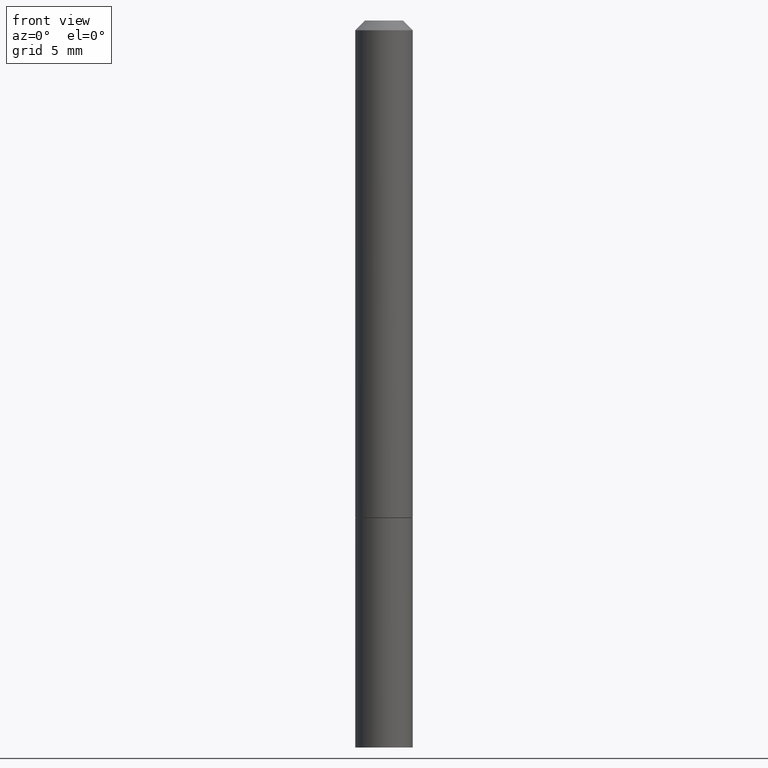
[diagram: clean part render]
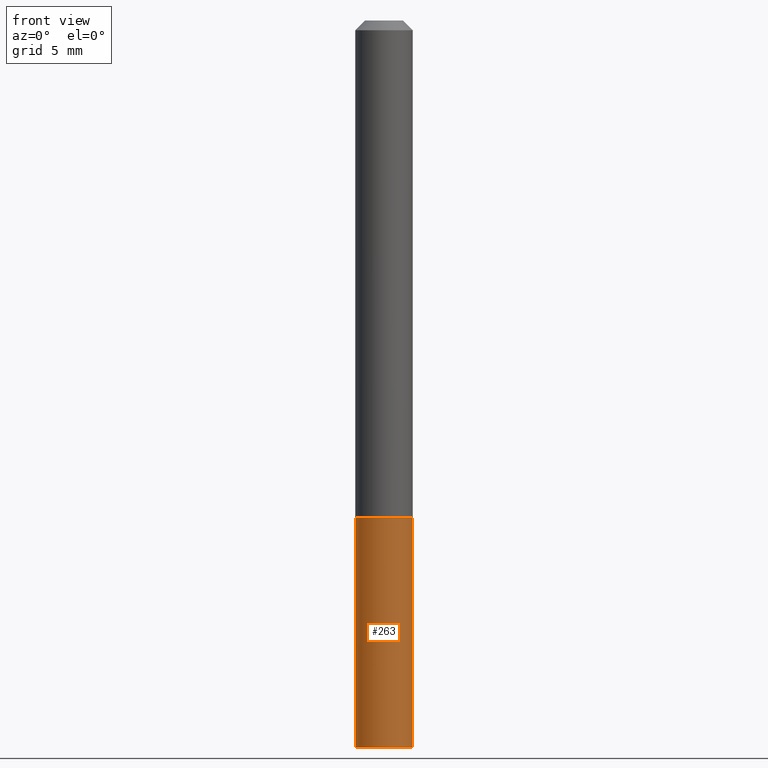
[diagram: same view with one face highlighted and labeled with its STEP entity id]
A machine part, front view. The second image highlights one B-rep face of the part: STEP entity #263.
In plain terms, the highlighted cylindrical surface (edge-blend (fillet) strip) has radius 1.4999 mm, axis along (-0, 0, 1).
Its self-contained STEP definition (entity closure, byte-faithful):
#3 = DIRECTION ( 'NONE',  ( 1.000000000000000000, -6.982962677686262766E-15, 0.000000000000000000 ) ) ;
#20 = VERTEX_POINT ( 'NONE', #84 ) ;
#23 = VERTEX_POINT ( 'NONE', #162 ) ;
#57 = DIRECTION ( 'NONE',  ( -2.445468806185136877E-29, 3.491481338843145188E-15, 1.000000000000000000 ) ) ;
#61 = CARTESIAN_POINT ( 'NONE',  ( 0.05905000000000001914, -4.123439461173741806E-16, 2.879382386107500921E-30 ) ) ;
#66 = CARTESIAN_POINT ( 'NONE',  ( 3.658665880933582389E-29, -5.223605231043229660E-15, -1.496099999999999985 ) ) ;
#83 = EDGE_LOOP ( 'NONE', ( #188, #245, #268, #105 ) ) ;
#84 = CARTESIAN_POINT ( 'NONE',  ( -0.05905000000000001914, -3.979341853342139538E-15, -1.023699999999999832 ) ) ;
#86 = EDGE_CURVE ( 'NONE', #276, #23, #171, .T. ) ;
#92 = CARTESIAN_POINT ( 'NONE',  ( 0.05905000000000001914, -5.635949177160603791E-15, -1.496099999999999985 ) ) ;
#105 = ORIENTED_EDGE ( 'NONE', *, *, #169, .F. ) ;
#112 = AXIS2_PLACEMENT_3D ( 'NONE', #66, #205, #320 ) ;
#116 = AXIS2_PLACEMENT_3D ( 'NONE', #168, #251, #3 ) ;
#121 = DIRECTION ( 'NONE',  ( -2.445468806185136597E-29, 3.491481338843145583E-15, 1.000000000000000000 ) ) ;
#122 = VECTOR ( 'NONE', #57, 39.37007874015748143 ) ;
#148 = CYLINDRICAL_SURFACE ( 'NONE', #230, 0.05905000000000001914 ) ;
#162 = CARTESIAN_POINT ( 'NONE',  ( 0.05905000000000001914, -3.986573392691101744E-15, -1.023699999999999832 ) ) ;
#168 = CARTESIAN_POINT ( 'NONE',  ( 2.503426416891723784E-29, -3.574229446573727613E-15, -1.023699999999999832 ) ) ;
#169 = EDGE_CURVE ( 'NONE', #20, #23, #272, .T. ) ;
#171 = LINE ( 'NONE', #61, #122 ) ;
#188 = ORIENTED_EDGE ( 'NONE', *, *, #189, .F. ) ;
#189 = EDGE_CURVE ( 'NONE', #325, #20, #224, .T. ) ;
#195 = DIRECTION ( 'NONE',  ( -2.445468806185136877E-29, 3.491481338843145188E-15, 1.000000000000000000 ) ) ;
#204 = DIRECTION ( 'NONE',  ( 1.000000000000000000, -6.982962677686266711E-15, 4.876176775795935793E-29 ) ) ;
#205 = DIRECTION ( 'NONE',  ( -2.445468806185136597E-29, 3.491481338843145583E-15, 1.000000000000000000 ) ) ;
#211 = EDGE_CURVE ( 'NONE', #325, #276, #243, .T. ) ;
#224 = LINE ( 'NONE', #342, #321 ) ;
#230 = AXIS2_PLACEMENT_3D ( 'NONE', #323, #121, #204 ) ;
#233 = FACE_OUTER_BOUND ( 'NONE', #83, .T. ) ;
#243 = CIRCLE ( 'NONE', #112, 0.05905000000000001914 ) ;
#245 = ORIENTED_EDGE ( 'NONE', *, *, #211, .T. ) ;
#251 = DIRECTION ( 'NONE',  ( -2.445468806185136597E-29, 3.491481338843145583E-15, 1.000000000000000000 ) ) ;
#263 = ADVANCED_FACE ( 'NONE', ( #233 ), #148, .T. ) ;
#268 = ORIENTED_EDGE ( 'NONE', *, *, #86, .T. ) ;
#272 = CIRCLE ( 'NONE', #116, 0.05905000000000001914 ) ;
#276 = VERTEX_POINT ( 'NONE', #92 ) ;
#320 = DIRECTION ( 'NONE',  ( 1.000000000000000000, -6.982962677686270655E-15, 0.000000000000000000 ) ) ;
#321 = VECTOR ( 'NONE', #195, 39.37007874015748143 ) ;
#323 = CARTESIAN_POINT ( 'NONE',  ( 0.000000000000000000, 0.000000000000000000, 0.000000000000000000 ) ) ;
#325 = VERTEX_POINT ( 'NONE', #348 ) ;
#342 = CARTESIAN_POINT ( 'NONE',  ( -0.05905000000000001914, 4.195754854663392958E-16, -2.904631170795522943E-30 ) ) ;
#348 = CARTESIAN_POINT ( 'NONE',  ( -0.05905000000000001914, -3.979341853342139538E-15, -1.496099999999999985 ) ) ;